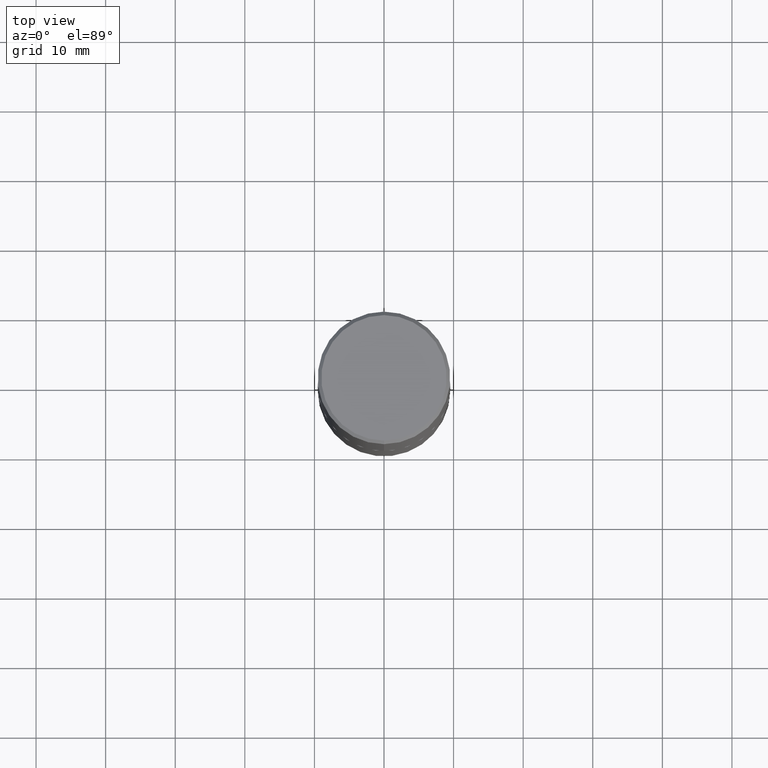
[diagram: clean part render]
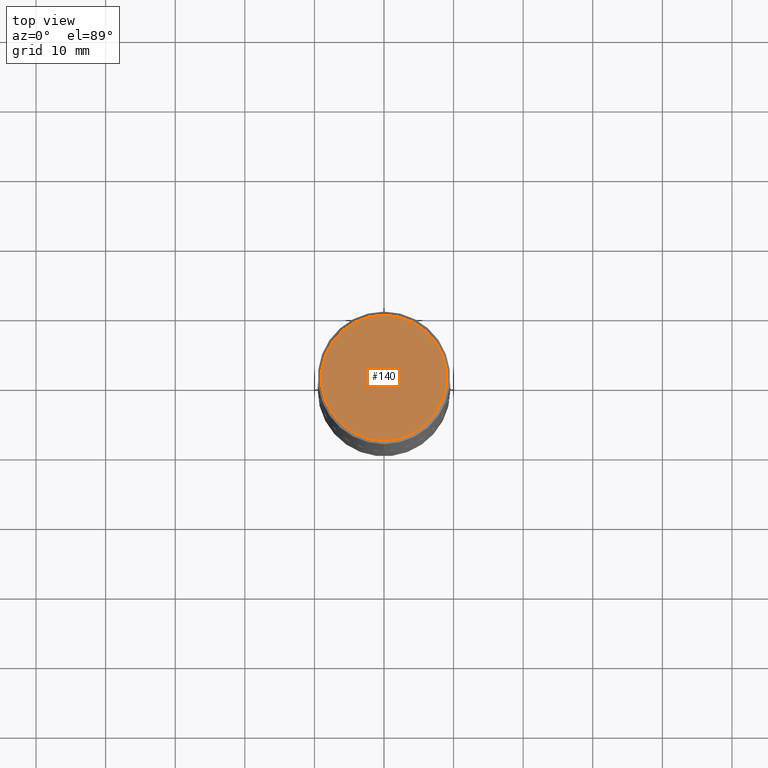
[diagram: same view with one face highlighted and labeled with its STEP entity id]
A machine part, top view. The second image highlights one B-rep face of the part: STEP entity #140.
In plain terms, the highlighted planar face has unit normal (0, -0, -1).
Its self-contained STEP definition (entity closure, byte-faithful):
#3 = AXIS2_PLACEMENT_3D ( 'NONE', #246, #213, #281 ) ;
#6 = CARTESIAN_POINT ( 'NONE',  ( -2.504081769186608216E-15, -0.3549999999999999822, 1.300162411011219070E-15 ) ) ;
#12 = PLANE ( 'NONE',  #169 ) ;
#17 = DIRECTION ( 'NONE',  ( 6.982962677686265922E-15, 1.000000000000000000, -3.492787480900183539E-15 ) ) ;
#20 = DIRECTION ( 'NONE',  ( -6.982962677686265922E-15, -1.000000000000000000, 3.492787480900183539E-15 ) ) ;
#34 = VERTEX_POINT ( 'NONE', #6 ) ;
#55 = ORIENTED_EDGE ( 'NONE', *, *, #165, .T. ) ;
#91 = EDGE_LOOP ( 'NONE', ( #314, #55 ) ) ;
#140 = ADVANCED_FACE ( 'NONE', ( #298 ), #12, .F. ) ;
#147 = AXIS2_PLACEMENT_3D ( 'NONE', #210, #336, #20 ) ;
#165 = EDGE_CURVE ( 'NONE', #34, #280, #333, .T. ) ;
#169 = AXIS2_PLACEMENT_3D ( 'NONE', #180, #270, #17 ) ;
#176 = CIRCLE ( 'NONE', #3, 0.3549999999999999822 ) ;
#180 = CARTESIAN_POINT ( 'NONE',  ( 2.478951750578624209E-15, 0.3549999999999999822, -1.209828128073737866E-15 ) ) ;
#208 = CARTESIAN_POINT ( 'NONE',  ( 2.548781377355487113E-15, 0.3549999999999999822, -1.179716700427910864E-15 ) ) ;
#210 = CARTESIAN_POINT ( 'NONE',  ( -1.472181863271807767E-45, 2.103456350267532841E-31, 6.022285529165422635E-17 ) ) ;
#213 = DIRECTION ( 'NONE',  ( -2.444556732061531349E-29, 3.492787480900183539E-15, 1.000000000000000000 ) ) ;
#246 = CARTESIAN_POINT ( 'NONE',  ( -1.472181863271807767E-45, 2.103456350267532841E-31, 6.022285529165422635E-17 ) ) ;
#270 = DIRECTION ( 'NONE',  ( 2.444556732061531069E-29, -3.492787480900183539E-15, -1.000000000000000000 ) ) ;
#280 = VERTEX_POINT ( 'NONE', #208 ) ;
#281 = DIRECTION ( 'NONE',  ( -6.982962677686265922E-15, -1.000000000000000000, 3.492787480900183539E-15 ) ) ;
#298 = FACE_OUTER_BOUND ( 'NONE', #91, .T. ) ;
#314 = ORIENTED_EDGE ( 'NONE', *, *, #337, .T. ) ;
#333 = CIRCLE ( 'NONE', #147, 0.3549999999999999822 ) ;
#336 = DIRECTION ( 'NONE',  ( -2.444556732061531349E-29, 3.492787480900183539E-15, 1.000000000000000000 ) ) ;
#337 = EDGE_CURVE ( 'NONE', #280, #34, #176, .T. ) ;